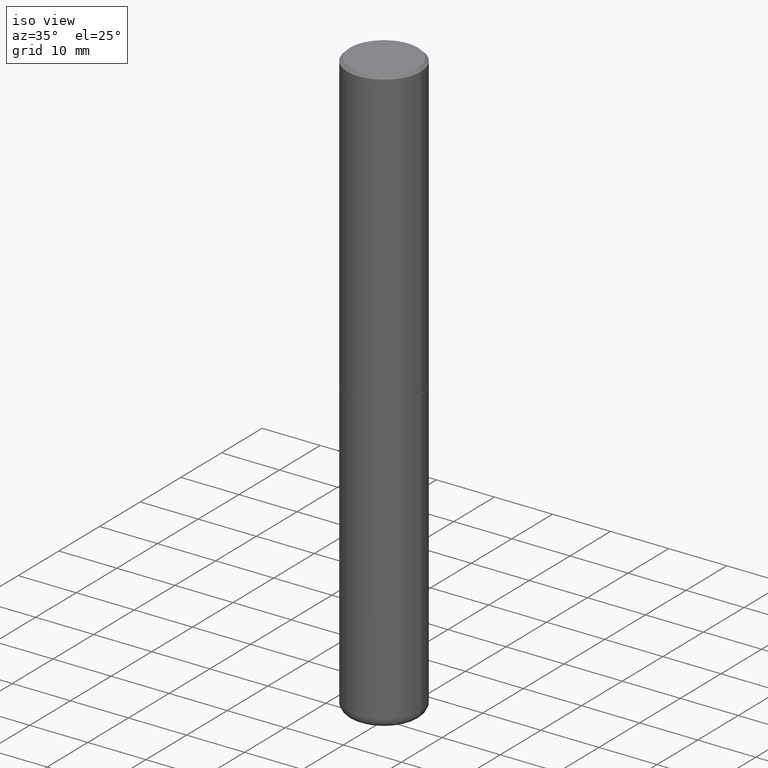
[diagram: clean part render]
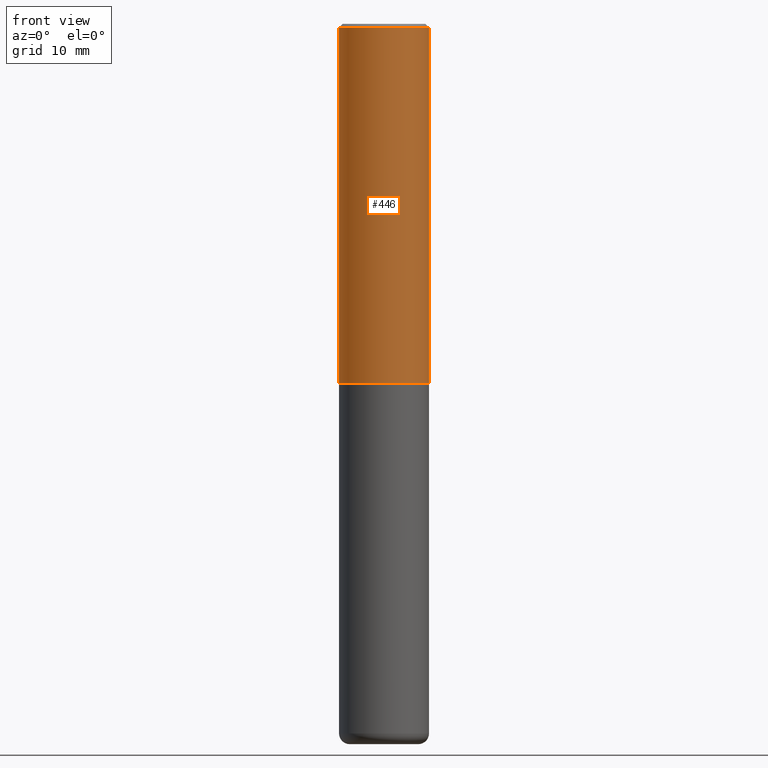
[diagram: tour spotlight — one face highlighted and labeled with its STEP entity id]
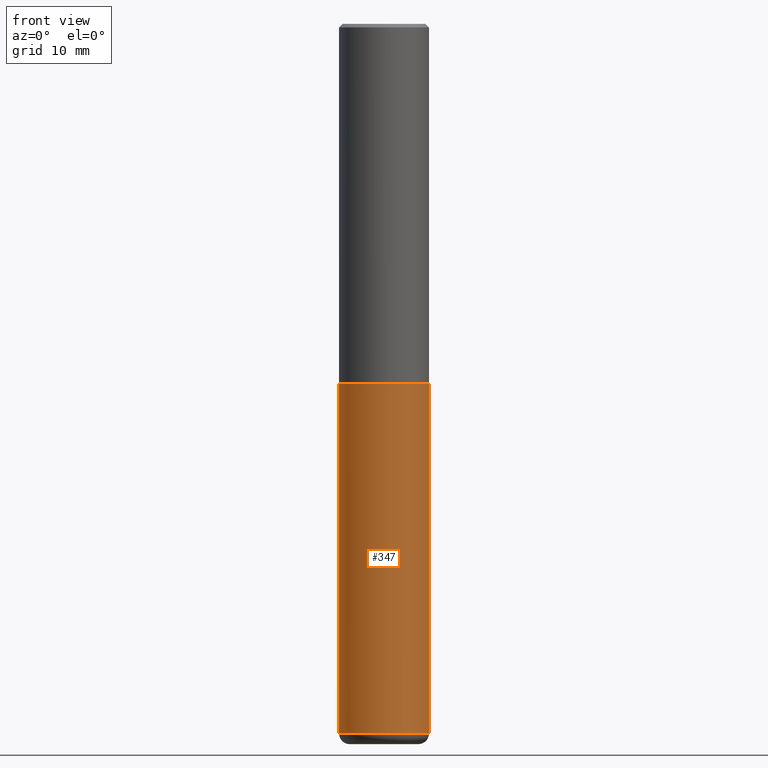
[diagram: tour spotlight — one face highlighted and labeled with its STEP entity id]
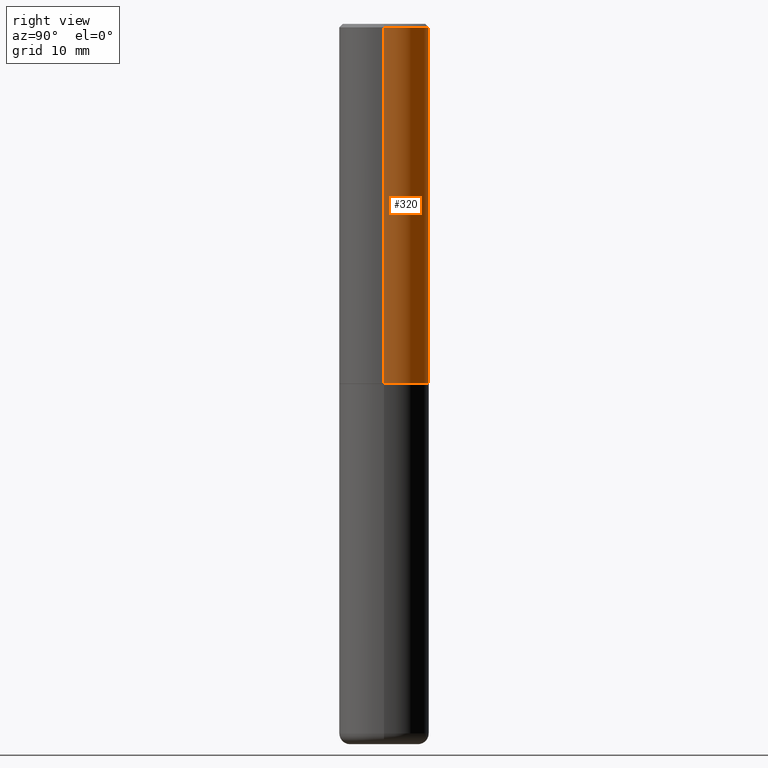
[diagram: tour spotlight — one face highlighted and labeled with its STEP entity id]
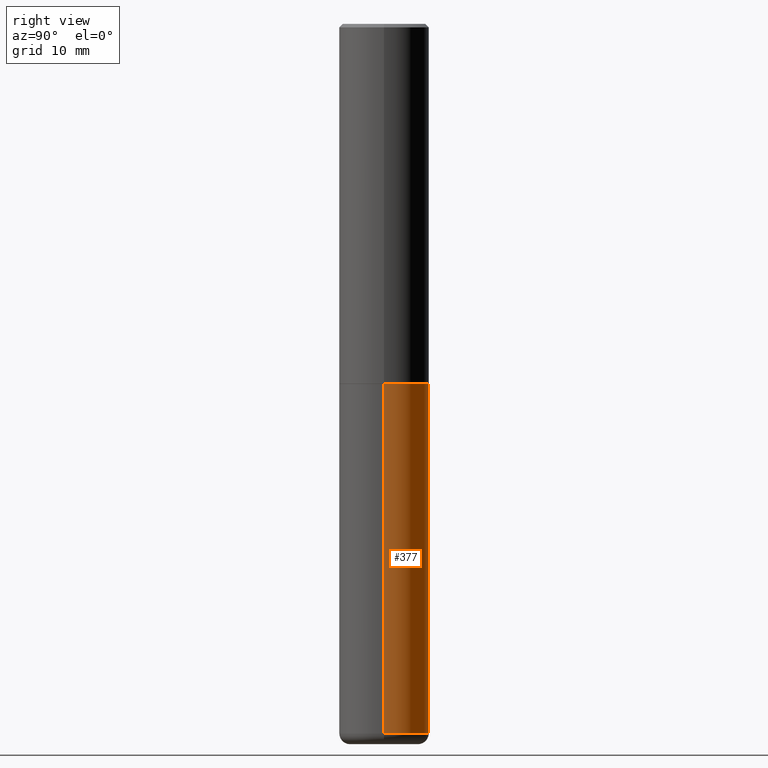
[diagram: tour spotlight — one face highlighted and labeled with its STEP entity id]
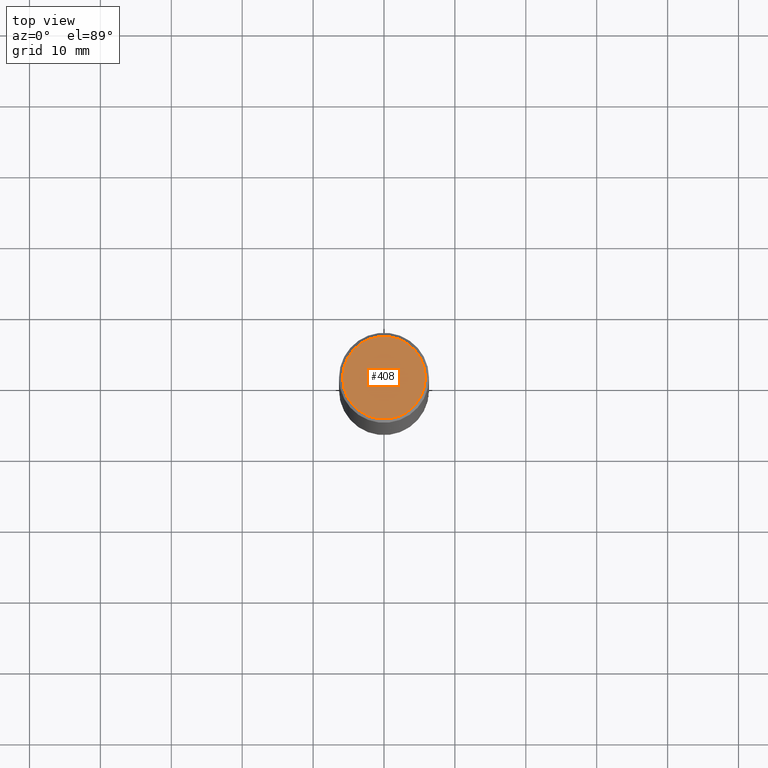
[diagram: tour spotlight — one face highlighted and labeled with its STEP entity id]
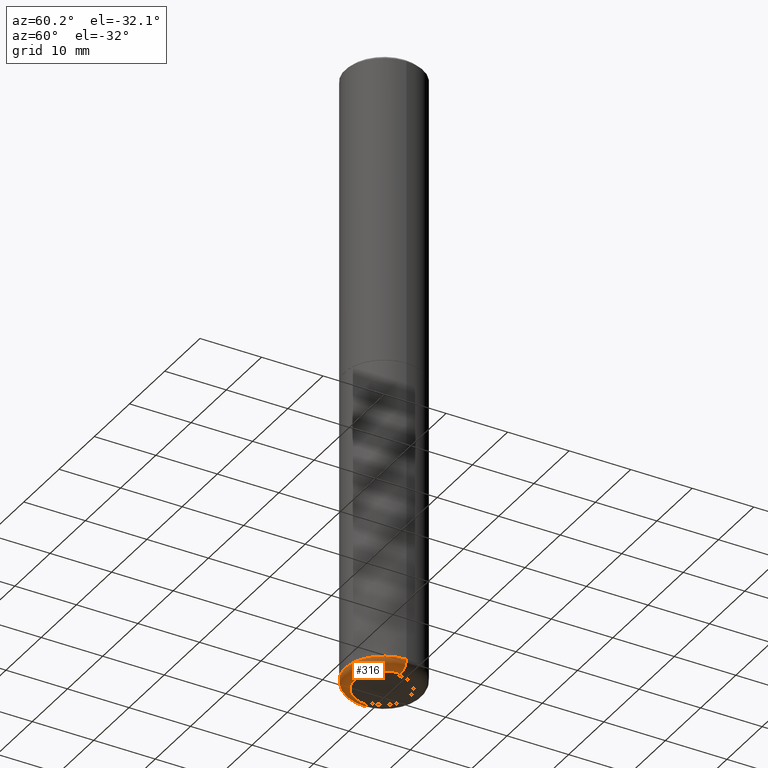
[diagram: tour spotlight — one face highlighted and labeled with its STEP entity id]
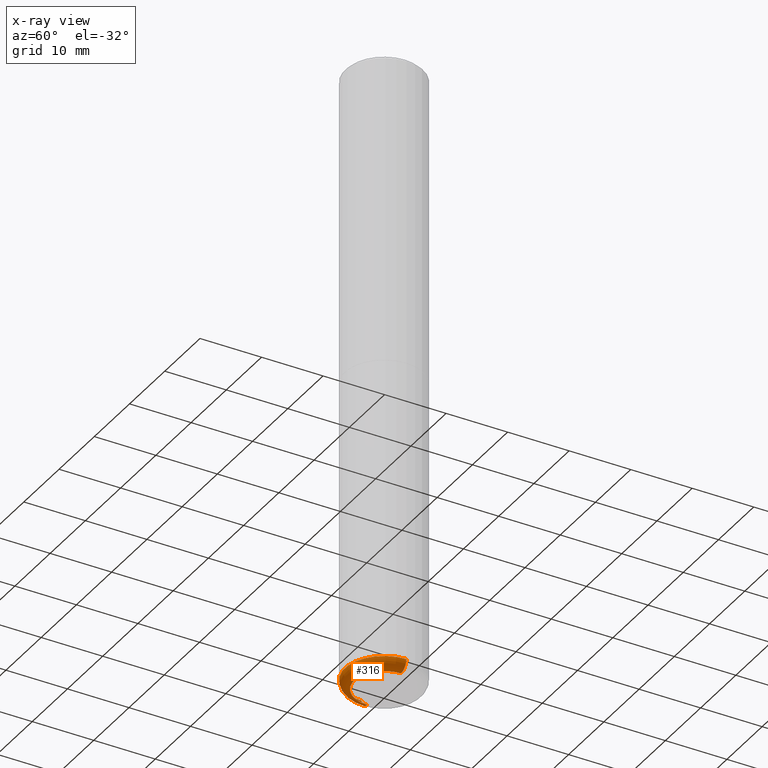
[diagram: x-ray of the same camera — body ghosted, this tour face saturated]
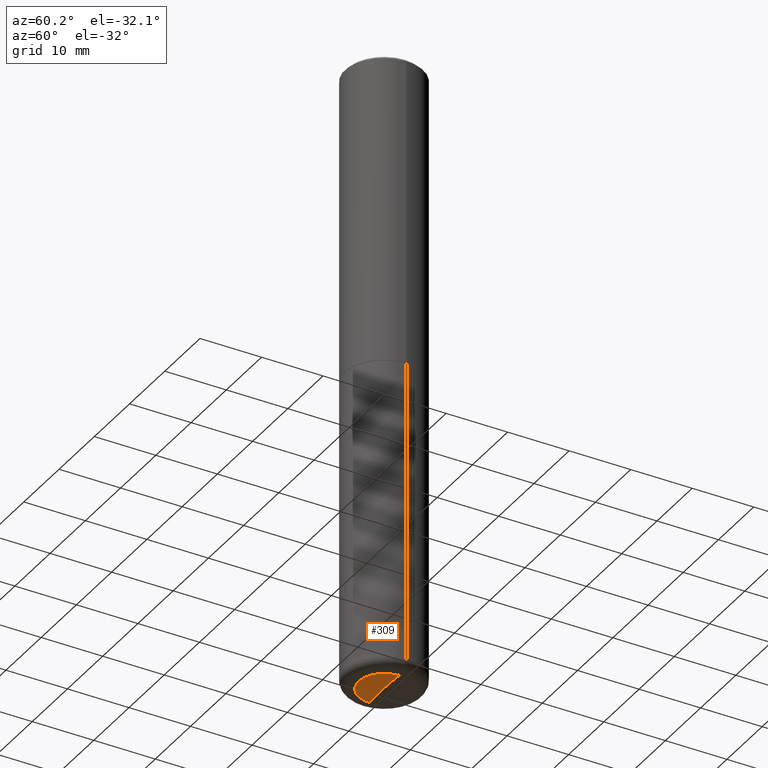
[diagram: tour spotlight — one face highlighted and labeled with its STEP entity id]
A machine part: a face-by-face anatomy tour. The part has 17 B-rep faces; the first image is the clean iso view, then the 7 largest visible faces are spotlighted one at a time (largest first), each with its STEP entity span.

Face 1 — front view, entity #446. In plain terms, the highlighted cylindrical surface (partial cylindrical patch) has radius 6.35 mm, axis along (-0, 0, 1).
Definition (entity closure, byte-faithful):
#6 = DIRECTION ( 'NONE',  ( 1.000000000000000000, -6.982962677686267499E-15, 0.000000000000000000 ) ) ;
#19 = DIRECTION ( 'NONE',  ( -2.445468806185136877E-29, 3.491481338843145188E-15, 1.000000000000000000 ) ) ;
#38 = ORIENTED_EDGE ( 'NONE', *, *, #236, .F. ) ;
#41 = VERTEX_POINT ( 'NONE', #374 ) ;
#69 = DIRECTION ( 'NONE',  ( -2.445468806185136877E-29, 3.491481338843145188E-15, 1.000000000000000000 ) ) ;
#85 = DIRECTION ( 'NONE',  ( -2.445468806185136597E-29, 3.491481338843145583E-15, 1.000000000000000000 ) ) ;
#112 = CARTESIAN_POINT ( 'NONE',  ( -0.2499999999999996669, 1.776356839400248098E-15, -1.229733772563724764E-29 ) ) ;
#128 = CARTESIAN_POINT ( 'NONE',  ( 0.2499999999999996669, -1.745740669421564311E-15, 1.219044193948982267E-29 ) ) ;
#135 = LINE ( 'NONE', #112, #412 ) ;
#138 = VERTEX_POINT ( 'NONE', #352 ) ;
#158 = ORIENTED_EDGE ( 'NONE', *, *, #364, .T. ) ;
#175 = FACE_OUTER_BOUND ( 'NONE', #383, .T. ) ;
#203 = AXIS2_PLACEMENT_3D ( 'NONE', #239, #401, #461 ) ;
#236 = EDGE_CURVE ( 'NONE', #138, #41, #294, .T. ) ;
#239 = CARTESIAN_POINT ( 'NONE',  ( 4.888492143564087591E-29, -6.979471196347447369E-15, -1.998999999999999888 ) ) ;
#245 = ORIENTED_EDGE ( 'NONE', *, *, #404, .F. ) ;
#252 = VERTEX_POINT ( 'NONE', #480 ) ;
#278 = VECTOR ( 'NONE', #19, 39.37007874015748143 ) ;
#284 = AXIS2_PLACEMENT_3D ( 'NONE', #444, #85, #318 ) ;
#285 = CYLINDRICAL_SURFACE ( 'NONE', #284, 0.2499999999999996669 ) ;
#287 = EDGE_CURVE ( 'NONE', #252, #341, #362, .T. ) ;
#294 = CIRCLE ( 'NONE', #390, 0.2499999999999993061 ) ;
#318 = DIRECTION ( 'NONE',  ( 1.000000000000000000, -6.982962677686266711E-15, 4.876176775795935793E-29 ) ) ;
#319 = ORIENTED_EDGE ( 'NONE', *, *, #287, .T. ) ;
#341 = VERTEX_POINT ( 'NONE', #393 ) ;
#345 = CARTESIAN_POINT ( 'NONE',  ( 4.890937612370299433E-31, -6.982962677686328587E-17, -0.02000000000000010797 ) ) ;
#352 = CARTESIAN_POINT ( 'NONE',  ( -0.2499999999999993061, 1.675911042644698449E-15, -0.02000000000000010797 ) ) ;
#362 = CIRCLE ( 'NONE', #203, 0.2499999999999999722 ) ;
#364 = EDGE_CURVE ( 'NONE', #341, #41, #470, .T. ) ;
#374 = CARTESIAN_POINT ( 'NONE',  ( 0.2499999999999993061, -1.784954126219741456E-15, -0.02000000000000010797 ) ) ;
#383 = EDGE_LOOP ( 'NONE', ( #245, #319, #158, #38 ) ) ;
#390 = AXIS2_PLACEMENT_3D ( 'NONE', #345, #462, #6 ) ;
#393 = CARTESIAN_POINT ( 'NONE',  ( 0.2499999999999999722, -8.725211865769014047E-15, -1.998999999999999888 ) ) ;
#401 = DIRECTION ( 'NONE',  ( -2.445468806185136597E-29, 3.491481338843145583E-15, 1.000000000000000000 ) ) ;
#404 = EDGE_CURVE ( 'NONE', #252, #138, #135, .T. ) ;
#412 = VECTOR ( 'NONE', #69, 39.37007874015748143 ) ;
#444 = CARTESIAN_POINT ( 'NONE',  ( 0.000000000000000000, 0.000000000000000000, 0.000000000000000000 ) ) ;
#446 = ADVANCED_FACE ( 'NONE', ( #175 ), #285, .T. ) ;
#461 = DIRECTION ( 'NONE',  ( 1.000000000000000000, -6.982962677686267499E-15, 0.000000000000000000 ) ) ;
#462 = DIRECTION ( 'NONE',  ( -2.445468806185136597E-29, 3.491481338843145583E-15, 1.000000000000000000 ) ) ;
#470 = LINE ( 'NONE', #128, #278 ) ;
#480 = CARTESIAN_POINT ( 'NONE',  ( -0.2500000000000000000, -1.748293572161900530E-15, -1.998999999999999888 ) ) ;

Face 2 — front view, entity #347. In plain terms, the highlighted cylindrical surface (partial cylindrical patch) has radius 6.35 mm, axis along (-0, 0, 1).
Definition (entity closure, byte-faithful):
#7 = CARTESIAN_POINT ( 'NONE',  ( -0.2500000000000000000, 1.776356839400250465E-15, -1.229733772563726445E-29 ) ) ;
#27 = DIRECTION ( 'NONE',  ( -2.445468806185136597E-29, 3.491481338843145583E-15, 1.000000000000000000 ) ) ;
#59 = ORIENTED_EDGE ( 'NONE', *, *, #150, .T. ) ;
#71 = VERTEX_POINT ( 'NONE', #490 ) ;
#72 = AXIS2_PLACEMENT_3D ( 'NONE', #365, #27, #288 ) ;
#79 = DIRECTION ( 'NONE',  ( -2.445468806185136597E-29, 3.491481338843145583E-15, 1.000000000000000000 ) ) ;
#92 = CARTESIAN_POINT ( 'NONE',  ( 0.2500000000000000555, -1.550218512115821313E-14, -3.940002284616149542 ) ) ;
#126 = EDGE_CURVE ( 'NONE', #185, #71, #269, .T. ) ;
#127 = VERTEX_POINT ( 'NONE', #92 ) ;
#131 = DIRECTION ( 'NONE',  ( 1.000000000000000000, -6.982962677686269077E-15, 0.000000000000000000 ) ) ;
#150 = EDGE_CURVE ( 'NONE', #185, #127, #277, .T. ) ;
#165 = CARTESIAN_POINT ( 'NONE',  ( 9.635152683326965477E-29, -1.375644445173664645E-14, -3.940002284616149542 ) ) ;
#177 = VERTEX_POINT ( 'NONE', #232 ) ;
#185 = VERTEX_POINT ( 'NONE', #387 ) ;
#205 = ORIENTED_EDGE ( 'NONE', *, *, #436, .F. ) ;
#208 = AXIS2_PLACEMENT_3D ( 'NONE', #165, #349, #131 ) ;
#232 = CARTESIAN_POINT ( 'NONE',  ( 0.2499999999999999722, -8.728703347107857054E-15, -2.000000000000000000 ) ) ;
#248 = VECTOR ( 'NONE', #358, 39.37007874015748143 ) ;
#264 = DIRECTION ( 'NONE',  ( 1.000000000000000000, -6.982962677686266711E-15, 4.876176775795935793E-29 ) ) ;
#267 = CIRCLE ( 'NONE', #72, 0.2499999999999999722 ) ;
#269 = LINE ( 'NONE', #7, #405 ) ;
#276 = CARTESIAN_POINT ( 'NONE',  ( 0.000000000000000000, 0.000000000000000000, 0.000000000000000000 ) ) ;
#277 = CIRCLE ( 'NONE', #208, 0.2500000000000000555 ) ;
#288 = DIRECTION ( 'NONE',  ( 1.000000000000000000, -6.982962677686267499E-15, 0.000000000000000000 ) ) ;
#306 = CARTESIAN_POINT ( 'NONE',  ( 0.2500000000000000000, -1.745740669421566678E-15, 1.219044193948983948E-29 ) ) ;
#313 = EDGE_LOOP ( 'NONE', ( #420, #59, #476, #205 ) ) ;
#315 = FACE_OUTER_BOUND ( 'NONE', #313, .T. ) ;
#330 = EDGE_CURVE ( 'NONE', #127, #177, #396, .T. ) ;
#347 = ADVANCED_FACE ( 'NONE', ( #315 ), #474, .T. ) ;
#349 = DIRECTION ( 'NONE',  ( -2.445468806185136597E-29, 3.491481338843145583E-15, 1.000000000000000000 ) ) ;
#358 = DIRECTION ( 'NONE',  ( -2.445468806185136877E-29, 3.491481338843145188E-15, 1.000000000000000000 ) ) ;
#365 = CARTESIAN_POINT ( 'NONE',  ( 4.890937612370273194E-29, -6.982962677686291165E-15, -2.000000000000000000 ) ) ;
#387 = CARTESIAN_POINT ( 'NONE',  ( -0.2500000000000000555, -8.593346725311217160E-15, -3.940002284616149542 ) ) ;
#391 = AXIS2_PLACEMENT_3D ( 'NONE', #276, #79, #264 ) ;
#396 = LINE ( 'NONE', #306, #248 ) ;
#405 = VECTOR ( 'NONE', #429, 39.37007874015748143 ) ;
#420 = ORIENTED_EDGE ( 'NONE', *, *, #126, .F. ) ;
#429 = DIRECTION ( 'NONE',  ( -2.445468806185136877E-29, 3.491481338843145188E-15, 1.000000000000000000 ) ) ;
#436 = EDGE_CURVE ( 'NONE', #71, #177, #267, .T. ) ;
#474 = CYLINDRICAL_SURFACE ( 'NONE', #391, 0.2500000000000000000 ) ;
#476 = ORIENTED_EDGE ( 'NONE', *, *, #330, .T. ) ;
#490 = CARTESIAN_POINT ( 'NONE',  ( -0.2499999999999999722, -8.593346725311218738E-15, -2.000000000000000000 ) ) ;

Face 3 — right view, entity #320. In plain terms, the highlighted cylindrical surface (partial cylindrical patch) has radius 6.35 mm, axis along (-0, 0, 1).
Definition (entity closure, byte-faithful):
#19 = DIRECTION ( 'NONE',  ( -2.445468806185136877E-29, 3.491481338843145188E-15, 1.000000000000000000 ) ) ;
#20 = DIRECTION ( 'NONE',  ( 1.000000000000000000, -6.982962677686267499E-15, 0.000000000000000000 ) ) ;
#21 = CARTESIAN_POINT ( 'NONE',  ( 4.888492143564087591E-29, -6.979471196347447369E-15, -1.998999999999999888 ) ) ;
#41 = VERTEX_POINT ( 'NONE', #374 ) ;
#69 = DIRECTION ( 'NONE',  ( -2.445468806185136877E-29, 3.491481338843145188E-15, 1.000000000000000000 ) ) ;
#78 = ORIENTED_EDGE ( 'NONE', *, *, #364, .F. ) ;
#95 = CYLINDRICAL_SURFACE ( 'NONE', #296, 0.2499999999999996669 ) ;
#103 = DIRECTION ( 'NONE',  ( -2.445468806185136597E-29, 3.491481338843145583E-15, 1.000000000000000000 ) ) ;
#112 = CARTESIAN_POINT ( 'NONE',  ( -0.2499999999999996669, 1.776356839400248098E-15, -1.229733772563724764E-29 ) ) ;
#128 = CARTESIAN_POINT ( 'NONE',  ( 0.2499999999999996669, -1.745740669421564311E-15, 1.219044193948982267E-29 ) ) ;
#135 = LINE ( 'NONE', #112, #412 ) ;
#138 = VERTEX_POINT ( 'NONE', #352 ) ;
#160 = CARTESIAN_POINT ( 'NONE',  ( 4.890937612370299433E-31, -6.982962677686328587E-17, -0.02000000000000010797 ) ) ;
#168 = DIRECTION ( 'NONE',  ( -2.445468806185136597E-29, 3.491481338843145583E-15, 1.000000000000000000 ) ) ;
#169 = ORIENTED_EDGE ( 'NONE', *, *, #244, .T. ) ;
#171 = ORIENTED_EDGE ( 'NONE', *, *, #235, .F. ) ;
#192 = DIRECTION ( 'NONE',  ( 1.000000000000000000, -6.982962677686267499E-15, 0.000000000000000000 ) ) ;
#230 = DIRECTION ( 'NONE',  ( 1.000000000000000000, -6.982962677686266711E-15, 4.876176775795935793E-29 ) ) ;
#234 = CARTESIAN_POINT ( 'NONE',  ( 0.000000000000000000, 0.000000000000000000, 0.000000000000000000 ) ) ;
#235 = EDGE_CURVE ( 'NONE', #41, #138, #472, .T. ) ;
#244 = EDGE_CURVE ( 'NONE', #341, #252, #424, .T. ) ;
#252 = VERTEX_POINT ( 'NONE', #480 ) ;
#258 = ORIENTED_EDGE ( 'NONE', *, *, #404, .T. ) ;
#278 = VECTOR ( 'NONE', #19, 39.37007874015748143 ) ;
#296 = AXIS2_PLACEMENT_3D ( 'NONE', #234, #168, #230 ) ;
#312 = EDGE_LOOP ( 'NONE', ( #169, #258, #171, #78 ) ) ;
#320 = ADVANCED_FACE ( 'NONE', ( #384 ), #95, .T. ) ;
#341 = VERTEX_POINT ( 'NONE', #393 ) ;
#352 = CARTESIAN_POINT ( 'NONE',  ( -0.2499999999999993061, 1.675911042644698449E-15, -0.02000000000000010797 ) ) ;
#364 = EDGE_CURVE ( 'NONE', #341, #41, #470, .T. ) ;
#374 = CARTESIAN_POINT ( 'NONE',  ( 0.2499999999999993061, -1.784954126219741456E-15, -0.02000000000000010797 ) ) ;
#384 = FACE_OUTER_BOUND ( 'NONE', #312, .T. ) ;
#385 = AXIS2_PLACEMENT_3D ( 'NONE', #21, #103, #20 ) ;
#393 = CARTESIAN_POINT ( 'NONE',  ( 0.2499999999999999722, -8.725211865769014047E-15, -1.998999999999999888 ) ) ;
#404 = EDGE_CURVE ( 'NONE', #252, #138, #135, .T. ) ;
#412 = VECTOR ( 'NONE', #69, 39.37007874015748143 ) ;
#424 = CIRCLE ( 'NONE', #385, 0.2499999999999999722 ) ;
#442 = AXIS2_PLACEMENT_3D ( 'NONE', #160, #468, #192 ) ;
#468 = DIRECTION ( 'NONE',  ( -2.445468806185136597E-29, 3.491481338843145583E-15, 1.000000000000000000 ) ) ;
#470 = LINE ( 'NONE', #128, #278 ) ;
#472 = CIRCLE ( 'NONE', #442, 0.2499999999999993061 ) ;
#480 = CARTESIAN_POINT ( 'NONE',  ( -0.2500000000000000000, -1.748293572161900530E-15, -1.998999999999999888 ) ) ;

Face 4 — right view, entity #377. In plain terms, the highlighted cylindrical surface (partial cylindrical patch) has radius 6.35 mm, axis along (-0, 0, 1).
Definition (entity closure, byte-faithful):
#7 = CARTESIAN_POINT ( 'NONE',  ( -0.2500000000000000000, 1.776356839400250465E-15, -1.229733772563726445E-29 ) ) ;
#71 = VERTEX_POINT ( 'NONE', #490 ) ;
#75 = ORIENTED_EDGE ( 'NONE', *, *, #330, .F. ) ;
#92 = CARTESIAN_POINT ( 'NONE',  ( 0.2500000000000000555, -1.550218512115821313E-14, -3.940002284616149542 ) ) ;
#93 = DIRECTION ( 'NONE',  ( -2.445468806185136597E-29, 3.491481338843145583E-15, 1.000000000000000000 ) ) ;
#101 = CIRCLE ( 'NONE', #162, 0.2500000000000000555 ) ;
#126 = EDGE_CURVE ( 'NONE', #185, #71, #269, .T. ) ;
#127 = VERTEX_POINT ( 'NONE', #92 ) ;
#139 = FACE_OUTER_BOUND ( 'NONE', #176, .T. ) ;
#162 = AXIS2_PLACEMENT_3D ( 'NONE', #425, #274, #199 ) ;
#163 = EDGE_CURVE ( 'NONE', #127, #185, #101, .T. ) ;
#174 = CYLINDRICAL_SURFACE ( 'NONE', #201, 0.2500000000000000000 ) ;
#176 = EDGE_LOOP ( 'NONE', ( #193, #327, #489, #75 ) ) ;
#177 = VERTEX_POINT ( 'NONE', #232 ) ;
#185 = VERTEX_POINT ( 'NONE', #387 ) ;
#193 = ORIENTED_EDGE ( 'NONE', *, *, #163, .T. ) ;
#199 = DIRECTION ( 'NONE',  ( 1.000000000000000000, -6.982962677686269077E-15, 0.000000000000000000 ) ) ;
#201 = AXIS2_PLACEMENT_3D ( 'NONE', #326, #323, #243 ) ;
#204 = AXIS2_PLACEMENT_3D ( 'NONE', #467, #93, #402 ) ;
#232 = CARTESIAN_POINT ( 'NONE',  ( 0.2499999999999999722, -8.728703347107857054E-15, -2.000000000000000000 ) ) ;
#243 = DIRECTION ( 'NONE',  ( 1.000000000000000000, -6.982962677686266711E-15, 4.876176775795935793E-29 ) ) ;
#248 = VECTOR ( 'NONE', #358, 39.37007874015748143 ) ;
#269 = LINE ( 'NONE', #7, #405 ) ;
#274 = DIRECTION ( 'NONE',  ( -2.445468806185136597E-29, 3.491481338843145583E-15, 1.000000000000000000 ) ) ;
#306 = CARTESIAN_POINT ( 'NONE',  ( 0.2500000000000000000, -1.745740669421566678E-15, 1.219044193948983948E-29 ) ) ;
#323 = DIRECTION ( 'NONE',  ( -2.445468806185136597E-29, 3.491481338843145583E-15, 1.000000000000000000 ) ) ;
#326 = CARTESIAN_POINT ( 'NONE',  ( 0.000000000000000000, 0.000000000000000000, 0.000000000000000000 ) ) ;
#327 = ORIENTED_EDGE ( 'NONE', *, *, #126, .T. ) ;
#330 = EDGE_CURVE ( 'NONE', #127, #177, #396, .T. ) ;
#358 = DIRECTION ( 'NONE',  ( -2.445468806185136877E-29, 3.491481338843145188E-15, 1.000000000000000000 ) ) ;
#377 = ADVANCED_FACE ( 'NONE', ( #139 ), #174, .T. ) ;
#387 = CARTESIAN_POINT ( 'NONE',  ( -0.2500000000000000555, -8.593346725311217160E-15, -3.940002284616149542 ) ) ;
#396 = LINE ( 'NONE', #306, #248 ) ;
#397 = EDGE_CURVE ( 'NONE', #177, #71, #431, .T. ) ;
#402 = DIRECTION ( 'NONE',  ( 1.000000000000000000, -6.982962677686267499E-15, 0.000000000000000000 ) ) ;
#405 = VECTOR ( 'NONE', #429, 39.37007874015748143 ) ;
#425 = CARTESIAN_POINT ( 'NONE',  ( 9.635152683326965477E-29, -1.375644445173664645E-14, -3.940002284616149542 ) ) ;
#429 = DIRECTION ( 'NONE',  ( -2.445468806185136877E-29, 3.491481338843145188E-15, 1.000000000000000000 ) ) ;
#431 = CIRCLE ( 'NONE', #204, 0.2499999999999999722 ) ;
#467 = CARTESIAN_POINT ( 'NONE',  ( 4.890937612370273194E-29, -6.982962677686291165E-15, -2.000000000000000000 ) ) ;
#489 = ORIENTED_EDGE ( 'NONE', *, *, #397, .F. ) ;
#490 = CARTESIAN_POINT ( 'NONE',  ( -0.2499999999999999722, -8.593346725311218738E-15, -2.000000000000000000 ) ) ;

Face 5 — top view, entity #408. In plain terms, the highlighted planar face has unit normal (0, -0, -1).
Definition (entity closure, byte-faithful):
#32 = CIRCLE ( 'NONE', #56, 0.2299999999999992328 ) ;
#53 = DIRECTION ( 'NONE',  ( 1.000000000000000000, -6.982962677686266711E-15, 4.875813741439116029E-29 ) ) ;
#56 = AXIS2_PLACEMENT_3D ( 'NONE', #361, #403, #409 ) ;
#66 = FACE_OUTER_BOUND ( 'NONE', #322, .T. ) ;
#74 = VERTEX_POINT ( 'NONE', #291 ) ;
#80 = AXIS2_PLACEMENT_3D ( 'NONE', #308, #303, #53 ) ;
#164 = EDGE_CURVE ( 'NONE', #441, #74, #283, .T. ) ;
#183 = CARTESIAN_POINT ( 'NONE',  ( 0.2299999999999992328, -1.681434332853594278E-15, 8.537024980212318048E-18 ) ) ;
#213 = DIRECTION ( 'NONE',  ( 2.438088387897960049E-29, -3.491481338843145188E-15, -1.000000000000000000 ) ) ;
#283 = CIRCLE ( 'NONE', #80, 0.2299999999999992328 ) ;
#291 = CARTESIAN_POINT ( 'NONE',  ( -0.2299999999999992328, 1.640996229256267392E-15, 8.537024980189468815E-18 ) ) ;
#303 = DIRECTION ( 'NONE',  ( -2.445468806185136597E-29, 3.491481338843145583E-15, 1.000000000000000000 ) ) ;
#308 = CARTESIAN_POINT ( 'NONE',  ( -2.087702828670439639E-46, 2.980686340760894400E-32, 8.537024980200822558E-18 ) ) ;
#322 = EDGE_LOOP ( 'NONE', ( #351, #375 ) ) ;
#337 = DIRECTION ( 'NONE',  ( -1.000000000000000000, 6.982962677686265922E-15, -4.876176775795935793E-29 ) ) ;
#351 = ORIENTED_EDGE ( 'NONE', *, *, #460, .T. ) ;
#361 = CARTESIAN_POINT ( 'NONE',  ( -2.087702828670439639E-46, 2.980686340760894400E-32, 8.537024980200822558E-18 ) ) ;
#375 = ORIENTED_EDGE ( 'NONE', *, *, #164, .T. ) ;
#378 = CARTESIAN_POINT ( 'NONE',  ( 1.606081415867835743E-15, 0.2299999999999992328, -7.987721954438203042E-16 ) ) ;
#403 = DIRECTION ( 'NONE',  ( -2.445468806185136597E-29, 3.491481338843145583E-15, 1.000000000000000000 ) ) ;
#408 = ADVANCED_FACE ( 'NONE', ( #66 ), #413, .F. ) ;
#409 = DIRECTION ( 'NONE',  ( 1.000000000000000000, -6.982962677686266711E-15, 4.875813741439116029E-29 ) ) ;
#413 = PLANE ( 'NONE',  #464 ) ;
#441 = VERTEX_POINT ( 'NONE', #183 ) ;
#460 = EDGE_CURVE ( 'NONE', #74, #441, #32, .T. ) ;
#464 = AXIS2_PLACEMENT_3D ( 'NONE', #378, #213, #337 ) ;

Face 6 — auxiliary view, entity #316. An x-ray twin of the same camera follows (body ghosted, this face saturated) — the face is partly hidden behind the body. In plain terms, the highlighted toroidal blend (fillet) surface has major radius 4.826 mm and minor (blend) radius 1.524 mm.
Definition (entity closure, byte-faithful):
#22 = CIRCLE ( 'NONE', #301, 0.05999999999999994227 ) ;
#31 = EDGE_CURVE ( 'NONE', #440, #185, #229, .T. ) ;
#35 = ORIENTED_EDGE ( 'NONE', *, *, #411, .T. ) ;
#89 = DIRECTION ( 'NONE',  ( -2.445468806185136597E-29, 3.491481338843145583E-15, 1.000000000000000000 ) ) ;
#92 = CARTESIAN_POINT ( 'NONE',  ( 0.2500000000000000555, -1.550218512115821313E-14, -3.940002284616149542 ) ) ;
#106 = EDGE_CURVE ( 'NONE', #242, #127, #22, .T. ) ;
#124 = DIRECTION ( 'NONE',  ( 1.000000000000000000, -6.982962677686274599E-15, 0.000000000000000000 ) ) ;
#127 = VERTEX_POINT ( 'NONE', #92 ) ;
#131 = DIRECTION ( 'NONE',  ( 1.000000000000000000, -6.982962677686269077E-15, 0.000000000000000000 ) ) ;
#140 = CARTESIAN_POINT ( 'NONE',  ( 0.1894764078700981458, -1.528903203983153826E-14, -4.000000000000000000 ) ) ;
#150 = EDGE_CURVE ( 'NONE', #185, #127, #277, .T. ) ;
#151 = DIRECTION ( 'NONE',  ( -2.445468806185136597E-29, 3.491481338843145583E-15, 1.000000000000000000 ) ) ;
#156 = AXIS2_PLACEMENT_3D ( 'NONE', #217, #151, #206 ) ;
#159 = DIRECTION ( 'NONE',  ( 1.000000000000000000, -6.982962677686265133E-15, 4.883557194083111780E-29 ) ) ;
#165 = CARTESIAN_POINT ( 'NONE',  ( 9.635152683326965477E-29, -1.375644445173664645E-14, -3.940002284616149542 ) ) ;
#172 = AXIS2_PLACEMENT_3D ( 'NONE', #251, #456, #207 ) ;
#185 = VERTEX_POINT ( 'NONE', #387 ) ;
#195 = DIRECTION ( 'NONE',  ( -6.982962677686266711E-15, -1.000000000000000000, 3.491481338843145583E-15 ) ) ;
#197 = CIRCLE ( 'NONE', #156, 0.1894764078700981458 ) ;
#200 = CARTESIAN_POINT ( 'NONE',  ( 9.635152683326965477E-29, -1.375644445173664645E-14, -3.940002284616149542 ) ) ;
#206 = DIRECTION ( 'NONE',  ( 1.000000000000000000, -6.982962677686261189E-15, 0.000000000000000000 ) ) ;
#207 = DIRECTION ( 'NONE',  ( -1.000000000000000000, 7.105427357600997914E-15, 0.000000000000000000 ) ) ;
#208 = AXIS2_PLACEMENT_3D ( 'NONE', #165, #349, #131 ) ;
#217 = CARTESIAN_POINT ( 'NONE',  ( 9.781875224740546387E-29, -1.396592535537258233E-14, -4.000000000000000000 ) ) ;
#218 = ORIENTED_EDGE ( 'NONE', *, *, #106, .T. ) ;
#229 = CIRCLE ( 'NONE', #172, 0.05999999999999994227 ) ;
#242 = VERTEX_POINT ( 'NONE', #140 ) ;
#249 = ORIENTED_EDGE ( 'NONE', *, *, #31, .F. ) ;
#250 = ORIENTED_EDGE ( 'NONE', *, *, #150, .F. ) ;
#251 = CARTESIAN_POINT ( 'NONE',  ( -0.1900000000000002520, -1.240641325379245490E-14, -3.940002284616149542 ) ) ;
#260 = FACE_OUTER_BOUND ( 'NONE', #479, .T. ) ;
#277 = CIRCLE ( 'NONE', #208, 0.2500000000000000555 ) ;
#301 = AXIS2_PLACEMENT_3D ( 'NONE', #465, #195, #124 ) ;
#316 = ADVANCED_FACE ( 'NONE', ( #260 ), #363, .T. ) ;
#328 = CARTESIAN_POINT ( 'NONE',  ( -0.1894764078700981458, -1.229985105780440632E-14, -4.000000000000000000 ) ) ;
#349 = DIRECTION ( 'NONE',  ( -2.445468806185136597E-29, 3.491481338843145583E-15, 1.000000000000000000 ) ) ;
#363 = TOROIDAL_SURFACE ( 'NONE', #406, 0.1900000000000002520, 0.05999999999999995615 ) ;
#387 = CARTESIAN_POINT ( 'NONE',  ( -0.2500000000000000555, -8.593346725311217160E-15, -3.940002284616149542 ) ) ;
#406 = AXIS2_PLACEMENT_3D ( 'NONE', #200, #89, #159 ) ;
#411 = EDGE_CURVE ( 'NONE', #440, #242, #197, .T. ) ;
#440 = VERTEX_POINT ( 'NONE', #328 ) ;
#456 = DIRECTION ( 'NONE',  ( 7.105427357601001859E-15, 1.000000000000000000, -3.491481338843145583E-15 ) ) ;
#465 = CARTESIAN_POINT ( 'NONE',  ( 0.1900000000000002520, -1.508320736049703965E-14, -3.940002284616149542 ) ) ;
#479 = EDGE_LOOP ( 'NONE', ( #249, #35, #218, #250 ) ) ;

Face 7 — auxiliary view, entity #309. In plain terms, the highlighted conical surface has half-angle 88 deg.
Definition (entity closure, byte-faithful):
#1 = AXIS2_PLACEMENT_3D ( 'NONE', #47, #161, #270 ) ;
#10 = CARTESIAN_POINT ( 'NONE',  ( -0.1628114078700981238, -1.282820689626927800E-14, -3.999767298070359356 ) ) ;
#14 = CARTESIAN_POINT ( 'NONE',  ( 0.1628114078700981238, -1.508208021863490291E-14, -3.999767298070359356 ) ) ;
#18 = VERTEX_POINT ( 'NONE', #68 ) ;
#40 = LINE ( 'NONE', #370, #129 ) ;
#47 = CARTESIAN_POINT ( 'NONE',  ( 9.781306159430471629E-29, -1.396511288092772933E-14, -3.999767298070359356 ) ) ;
#58 = EDGE_CURVE ( 'NONE', #18, #298, #40, .T. ) ;
#68 = CARTESIAN_POINT ( 'NONE',  ( 9.766977940771288502E-29, -1.394586998267143363E-14, -3.994081798425500818 ) ) ;
#94 = ORIENTED_EDGE ( 'NONE', *, *, #58, .T. ) ;
#129 = VECTOR ( 'NONE', #181, 39.37007874015748143 ) ;
#133 = DIRECTION ( 'NONE',  ( -1.000000000000000000, 6.982962677686266711E-15, 0.000000000000000000 ) ) ;
#149 = EDGE_CURVE ( 'NONE', #154, #298, #254, .T. ) ;
#154 = VERTEX_POINT ( 'NONE', #10 ) ;
#161 = DIRECTION ( 'NONE',  ( -2.445468806185136597E-29, 3.491481338843145583E-15, 1.000000000000000000 ) ) ;
#166 = DIRECTION ( 'NONE',  ( 2.445468806185136597E-29, -3.491481338843145583E-15, -1.000000000000000000 ) ) ;
#181 = DIRECTION ( 'NONE',  ( 0.9993908270190957621, -6.978169709227541488E-15, -0.03489949670250108021 ) ) ;
#198 = DIRECTION ( 'NONE',  ( -0.9993908270190957621, 6.856857904024556470E-15, -0.03489949670250108021 ) ) ;
#210 = AXIS2_PLACEMENT_3D ( 'NONE', #398, #166, #133 ) ;
#221 = LINE ( 'NONE', #344, #439 ) ;
#254 = CIRCLE ( 'NONE', #1, 0.1628114078700981238 ) ;
#270 = DIRECTION ( 'NONE',  ( 1.000000000000000000, -6.982962677686266711E-15, 0.000000000000000000 ) ) ;
#273 = ORIENTED_EDGE ( 'NONE', *, *, #149, .F. ) ;
#298 = VERTEX_POINT ( 'NONE', #14 ) ;
#309 = ADVANCED_FACE ( 'NONE', ( #432 ), #478, .F. ) ;
#344 = CARTESIAN_POINT ( 'NONE',  ( -0.1628114078700981238, -1.282820689626927800E-14, -3.999767298070359356 ) ) ;
#357 = EDGE_CURVE ( 'NONE', #18, #154, #221, .T. ) ;
#370 = CARTESIAN_POINT ( 'NONE',  ( 0.1628114078700981238, -1.508208021863490291E-14, -3.999767298070359356 ) ) ;
#398 = CARTESIAN_POINT ( 'NONE',  ( 9.781306159430471629E-29, -1.396511288092772933E-14, -3.999767298070359356 ) ) ;
#432 = FACE_OUTER_BOUND ( 'NONE', #448, .T. ) ;
#439 = VECTOR ( 'NONE', #198, 39.37007874015748143 ) ;
#448 = EDGE_LOOP ( 'NONE', ( #451, #94, #273 ) ) ;
#451 = ORIENTED_EDGE ( 'NONE', *, *, #357, .F. ) ;
#478 = CONICAL_SURFACE ( 'NONE', #210, 0.1628114078700981238, 1.535889741755009918 ) ;